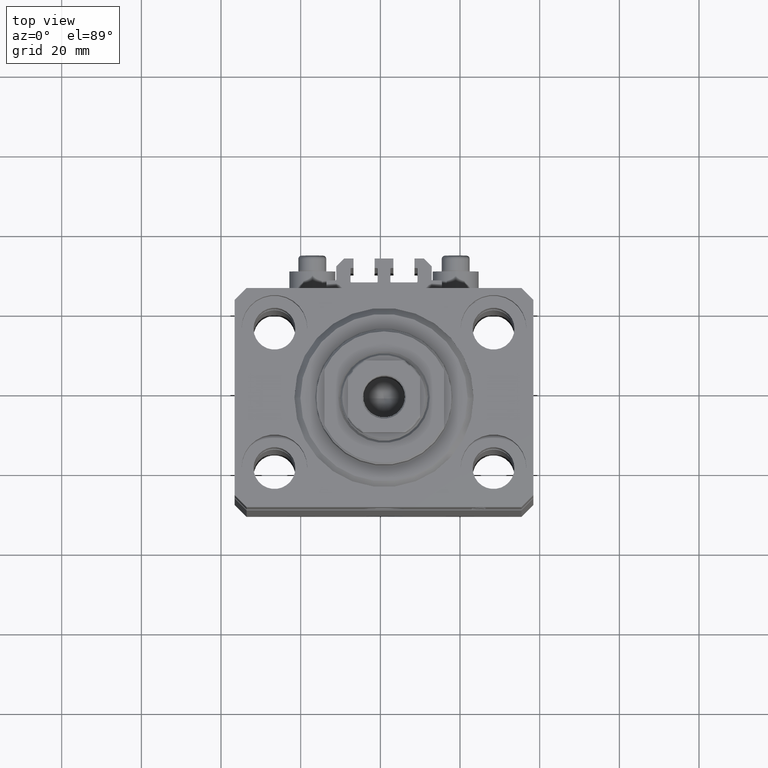
[diagram: clean part render]
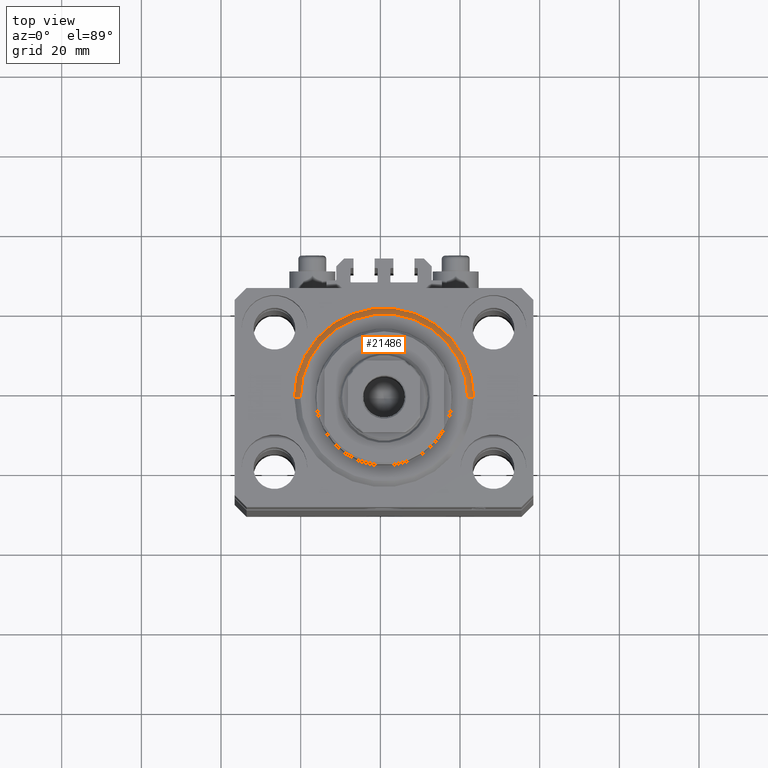
[diagram: same view with one face highlighted and labeled with its STEP entity id]
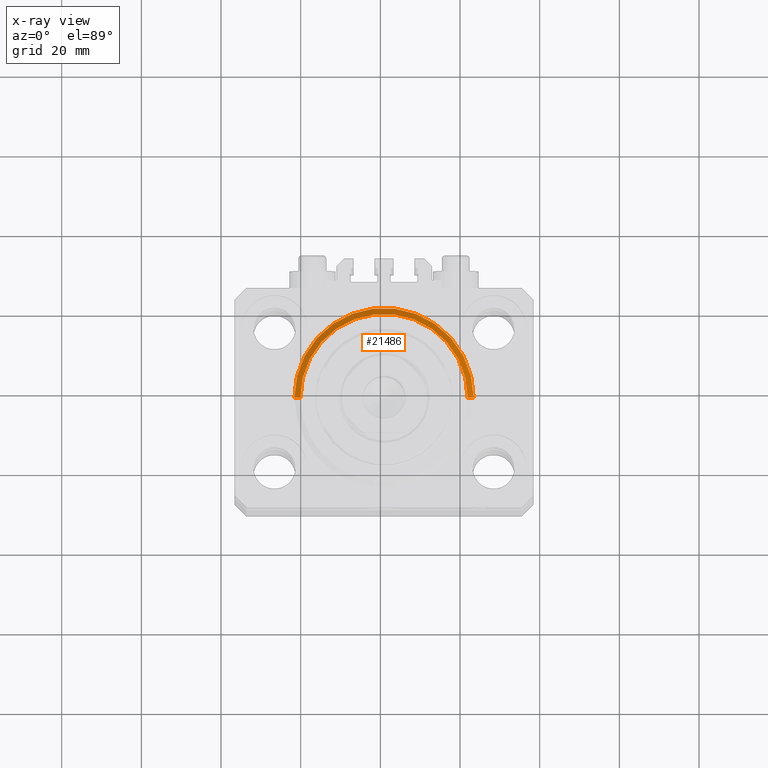
[diagram: x-ray of the same camera — body ghosted, the highlighted face saturated]
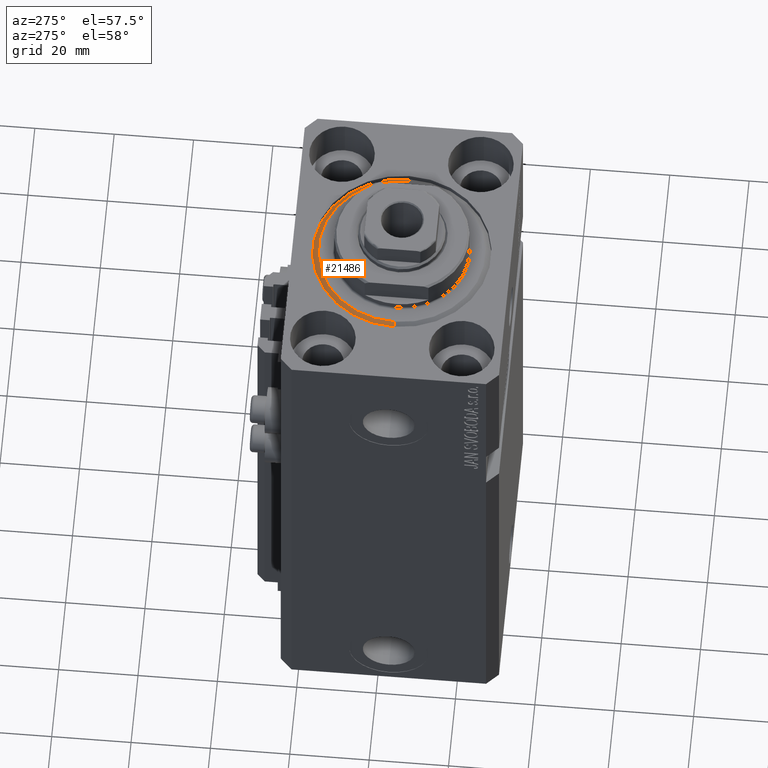
[diagram: same view with one face highlighted and labeled with its STEP entity id]
A machine part, top view. The second image highlights one B-rep face of the part: STEP entity #21486.
The next image is the same camera in x-ray: the body ghosted, the highlighted face saturated — about 0% of this face is hidden behind the body in this view.
A second angle (auxiliary view) of the same face is appended — the face is thin or edge-on in the first view.
In plain terms, the highlighted conical surface has half-angle 45 deg.
Its self-contained STEP definition (entity closure, byte-faithful):
#430 = DIRECTION ( 'NONE',  ( -0.000000000000000000, -0.000000000000000000, 1.000000000000000000 ) ) ;
#2854 = DIRECTION ( 'NONE',  ( -0.7071067811865500152, 8.659560562354962440E-17, 0.7071067811865451302 ) ) ;
#6425 = LINE ( 'NONE', #20590, #26683 ) ;
#8186 = CARTESIAN_POINT ( 'NONE',  ( -20.99999999999995381, 2.663606788145490261E-15, 0.000000000000000000 ) ) ;
#8213 = DIRECTION ( 'NONE',  ( -0.000000000000000000, -0.000000000000000000, 1.000000000000000000 ) ) ;
#9514 = EDGE_CURVE ( 'NONE', #14501, #12544, #31600, .T. ) ;
#12476 = CARTESIAN_POINT ( 'NONE',  ( 22.50000000000000355, 2.755455298081544383E-15, 1.500000000000039524 ) ) ;
#12544 = VERTEX_POINT ( 'NONE', #16520 ) ;
#14501 = VERTEX_POINT ( 'NONE', #8186 ) ;
#16520 = CARTESIAN_POINT ( 'NONE',  ( 20.99999999999995381, 0.000000000000000000, 0.000000000000000000 ) ) ;
#18385 = VERTEX_POINT ( 'NONE', #12476 ) ;
#20590 = CARTESIAN_POINT ( 'NONE',  ( -22.50000000000000355, 2.755455298081545172E-15, 1.500000000000039524 ) ) ;
#21486 = ADVANCED_FACE ( 'NONE', ( #23312 ), #28733, .T. ) ;
#22615 = VECTOR ( 'NONE', #28130, 1000.000000000000114 ) ;
#22672 = EDGE_LOOP ( 'NONE', ( #41402, #27874, #43408, #22802 ) ) ;
#22802 = ORIENTED_EDGE ( 'NONE', *, *, #25041, .F. ) ;
#23312 = FACE_OUTER_BOUND ( 'NONE', #22672, .T. ) ;
#24144 = AXIS2_PLACEMENT_3D ( 'NONE', #40167, #430, #39928 ) ;
#24452 = CARTESIAN_POINT ( 'NONE',  ( 0.000000000000000000, 0.000000000000000000, 0.000000000000000000 ) ) ;
#25041 = EDGE_CURVE ( 'NONE', #12544, #18385, #46329, .T. ) ;
#26114 = EDGE_CURVE ( 'NONE', #18385, #42670, #45562, .T. ) ;
#26598 = CARTESIAN_POINT ( 'NONE',  ( -22.50000000000000355, 0.000000000000000000, 1.500000000000039524 ) ) ;
#26683 = VECTOR ( 'NONE', #2854, 1000.000000000000114 ) ;
#27874 = ORIENTED_EDGE ( 'NONE', *, *, #42823, .T. ) ;
#28130 = DIRECTION ( 'NONE',  ( 0.7071067811865500152, 0.000000000000000000, 0.7071067811865451302 ) ) ;
#28733 = CONICAL_SURFACE ( 'NONE', #32537, 22.50000000000000355, 0.7853981633974517207 ) ;
#29214 = DIRECTION ( 'NONE',  ( 1.000000000000000000, 0.000000000000000000, 0.000000000000000000 ) ) ;
#31600 = CIRCLE ( 'NONE', #37714, 20.99999999999995381 ) ;
#32537 = AXIS2_PLACEMENT_3D ( 'NONE', #41243, #8213, #38113 ) ;
#35527 = CARTESIAN_POINT ( 'NONE',  ( 22.50000000000000355, 0.000000000000000000, 1.500000000000039524 ) ) ;
#37714 = AXIS2_PLACEMENT_3D ( 'NONE', #24452, #39503, #29214 ) ;
#38113 = DIRECTION ( 'NONE',  ( 1.000000000000000000, 0.000000000000000000, 0.000000000000000000 ) ) ;
#39503 = DIRECTION ( 'NONE',  ( -0.000000000000000000, -0.000000000000000000, -1.000000000000000000 ) ) ;
#39928 = DIRECTION ( 'NONE',  ( 1.000000000000000000, 0.000000000000000000, 0.000000000000000000 ) ) ;
#40167 = CARTESIAN_POINT ( 'NONE',  ( 0.000000000000000000, 0.000000000000000000, 1.500000000000039524 ) ) ;
#41243 = CARTESIAN_POINT ( 'NONE',  ( 0.000000000000000000, 0.000000000000000000, 1.500000000000039524 ) ) ;
#41402 = ORIENTED_EDGE ( 'NONE', *, *, #9514, .F. ) ;
#42670 = VERTEX_POINT ( 'NONE', #26598 ) ;
#42823 = EDGE_CURVE ( 'NONE', #14501, #42670, #6425, .T. ) ;
#43408 = ORIENTED_EDGE ( 'NONE', *, *, #26114, .F. ) ;
#45562 = CIRCLE ( 'NONE', #24144, 22.50000000000000355 ) ;
#46329 = LINE ( 'NONE', #35527, #22615 ) ;